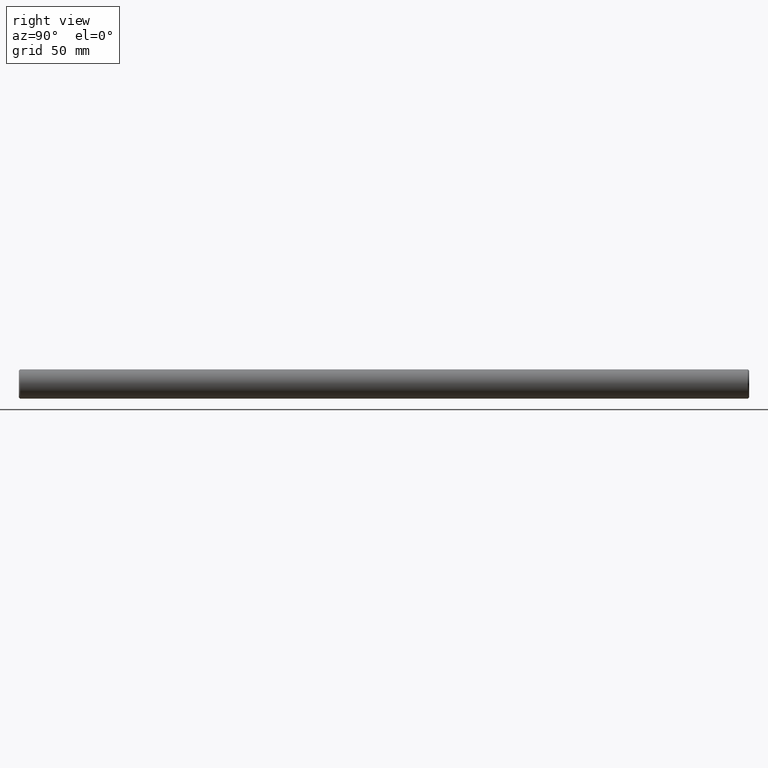
[diagram: clean part render]
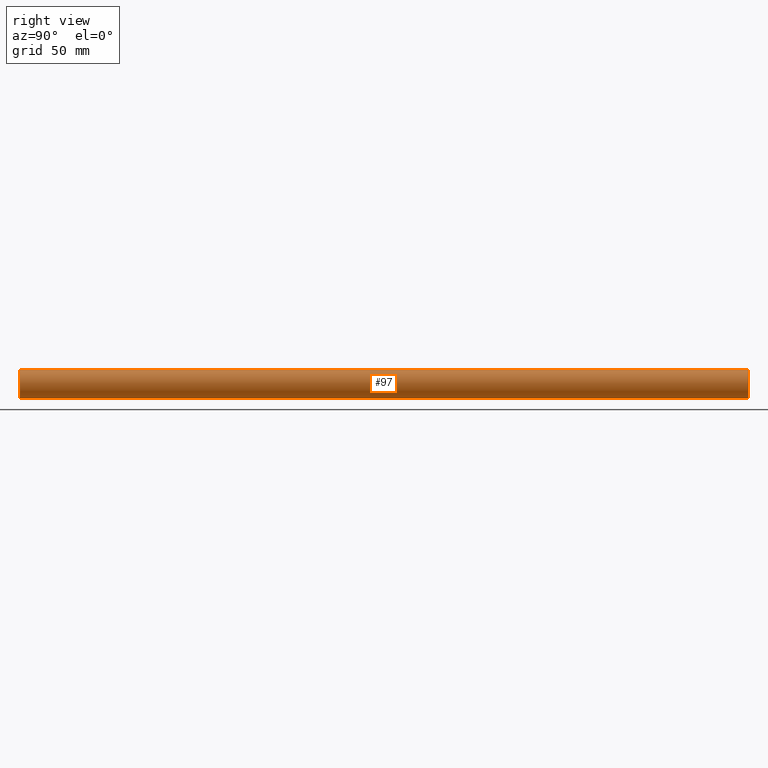
[diagram: same view with one face highlighted and labeled with its STEP entity id]
A machine part, right view. The second image highlights one B-rep face of the part: STEP entity #97.
In plain terms, the highlighted cylindrical surface (bore or boss wall) has radius 6 mm, axis along (0, 1, 0).
Its self-contained STEP definition (entity closure, byte-faithful):
#17=CYLINDRICAL_SURFACE('',#110,6.);
#21=FACE_BOUND('',#39,.T.);
#28=FACE_OUTER_BOUND('',#38,.T.);
#38=EDGE_LOOP('',(#78));
#39=EDGE_LOOP('',(#79));
#52=CIRCLE('',#108,6.);
#54=CIRCLE('',#111,6.);
#60=VERTEX_POINT('',#162);
#62=VERTEX_POINT('',#167);
#68=EDGE_CURVE('',#60,#60,#52,.T.);
#70=EDGE_CURVE('',#62,#62,#54,.T.);
#78=ORIENTED_EDGE('',*,*,#70,.F.);
#79=ORIENTED_EDGE('',*,*,#68,.F.);
#97=ADVANCED_FACE('',(#28,#21),#17,.T.);
#108=AXIS2_PLACEMENT_3D('',#163,#128,#129);
#110=AXIS2_PLACEMENT_3D('',#166,#132,#133);
#111=AXIS2_PLACEMENT_3D('',#168,#134,#135);
#128=DIRECTION('center_axis',(0.,-1.,0.));
#129=DIRECTION('ref_axis',(1.,0.,0.));
#132=DIRECTION('center_axis',(0.,1.,0.));
#133=DIRECTION('ref_axis',(1.,0.,0.));
#134=DIRECTION('center_axis',(0.,1.,0.));
#135=DIRECTION('ref_axis',(1.,0.,0.));
#162=CARTESIAN_POINT('',(-6.,-148.5,-7.34788079488412E-16));
#163=CARTESIAN_POINT('Origin',(0.,-148.5,0.));
#166=CARTESIAN_POINT('Origin',(0.,0.,0.));
#167=CARTESIAN_POINT('',(-6.,148.5,7.34788079488412E-16));
#168=CARTESIAN_POINT('Origin',(0.,148.5,0.));